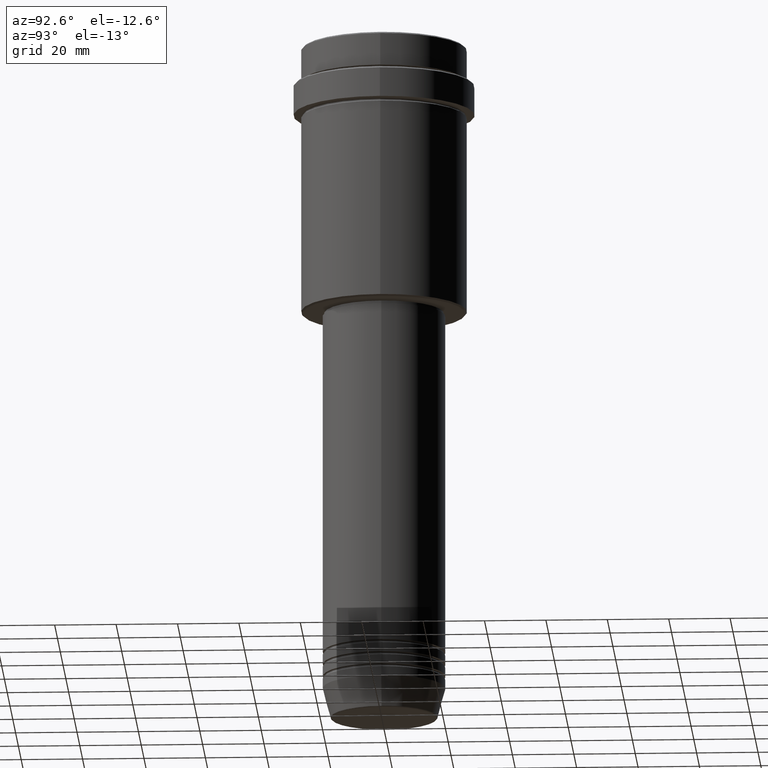
[diagram: clean part render]
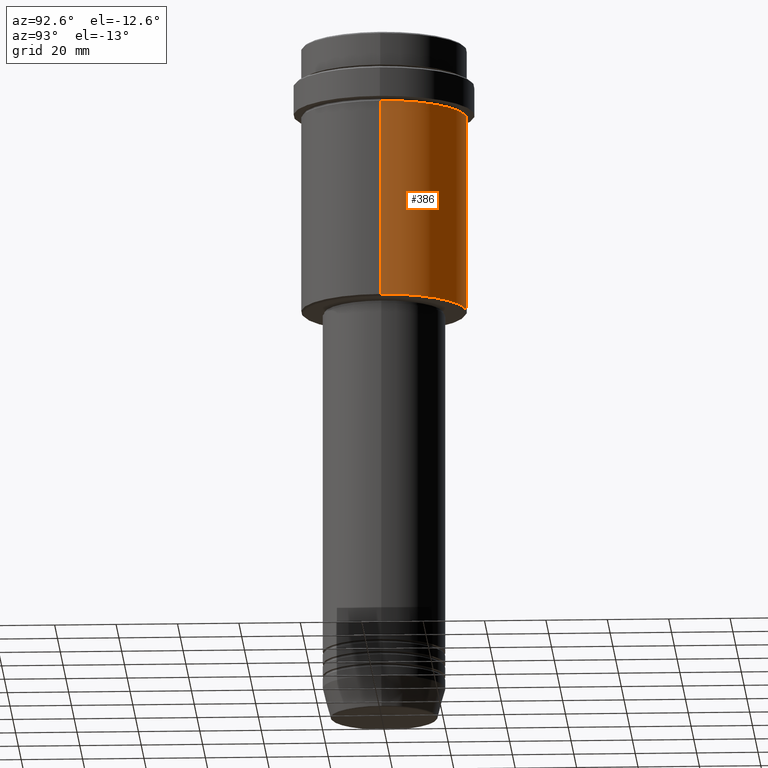
[diagram: same view with one face highlighted and labeled with its STEP entity id]
A machine part, auxiliary view. The second image highlights one B-rep face of the part: STEP entity #386.
In plain terms, the highlighted cylindrical surface (partial cylindrical patch) has radius 27 mm, axis along (-0, -0, 1).
Its self-contained STEP definition (entity closure, byte-faithful):
#135 = VERTEX_POINT ( 'NONE', #1028 ) ;
#146 = CIRCLE ( 'NONE', #257, 27.00000000000000355 ) ;
#183 = DIRECTION ( 'NONE',  ( -1.000000000000000000, 0.000000000000000000, 0.000000000000000000 ) ) ;
#196 = VERTEX_POINT ( 'NONE', #918 ) ;
#226 = CARTESIAN_POINT ( 'NONE',  ( -27.00000000000000355, 3.306546357697854128E-15, -23.00000000000001421 ) ) ;
#257 = AXIS2_PLACEMENT_3D ( 'NONE', #300, #941, #183 ) ;
#299 = EDGE_CURVE ( 'NONE', #196, #1294, #442, .T. ) ;
#300 = CARTESIAN_POINT ( 'NONE',  ( 0.000000000000000000, 0.000000000000000000, -87.49999999999998579 ) ) ;
#315 = CARTESIAN_POINT ( 'NONE',  ( 0.000000000000000000, 0.000000000000000000, -23.00000000000001421 ) ) ;
#386 = ADVANCED_FACE ( 'NONE', ( #1175 ), #1393, .T. ) ;
#398 = DIRECTION ( 'NONE',  ( -0.000000000000000000, -0.000000000000000000, 1.000000000000000000 ) ) ;
#418 = CARTESIAN_POINT ( 'NONE',  ( 0.000000000000000000, 0.000000000000000000, 0.000000000000000000 ) ) ;
#442 = CIRCLE ( 'NONE', #646, 27.00000000000000355 ) ;
#478 = ORIENTED_EDGE ( 'NONE', *, *, #1069, .F. ) ;
#545 = DIRECTION ( 'NONE',  ( -0.000000000000000000, -0.000000000000000000, 1.000000000000000000 ) ) ;
#567 = EDGE_LOOP ( 'NONE', ( #969, #1084, #835, #478 ) ) ;
#624 = CARTESIAN_POINT ( 'NONE',  ( 27.00000000000000355, 0.000000000000000000, 0.000000000000000000 ) ) ;
#641 = DIRECTION ( 'NONE',  ( 1.000000000000000000, 0.000000000000000000, 0.000000000000000000 ) ) ;
#646 = AXIS2_PLACEMENT_3D ( 'NONE', #315, #974, #641 ) ;
#757 = LINE ( 'NONE', #1415, #879 ) ;
#775 = EDGE_CURVE ( 'NONE', #1112, #135, #146, .T. ) ;
#783 = DIRECTION ( 'NONE',  ( 1.000000000000000000, 0.000000000000000000, 0.000000000000000000 ) ) ;
#812 = LINE ( 'NONE', #624, #1153 ) ;
#835 = ORIENTED_EDGE ( 'NONE', *, *, #299, .F. ) ;
#879 = VECTOR ( 'NONE', #545, 1000.000000000000000 ) ;
#918 = CARTESIAN_POINT ( 'NONE',  ( 27.00000000000000355, 0.000000000000000000, -23.00000000000001421 ) ) ;
#941 = DIRECTION ( 'NONE',  ( -0.000000000000000000, -0.000000000000000000, 1.000000000000000000 ) ) ;
#969 = ORIENTED_EDGE ( 'NONE', *, *, #775, .T. ) ;
#974 = DIRECTION ( 'NONE',  ( -0.000000000000000000, -0.000000000000000000, 1.000000000000000000 ) ) ;
#1028 = CARTESIAN_POINT ( 'NONE',  ( -27.00000000000000355, 3.306546357697854128E-15, -87.49999999999998579 ) ) ;
#1069 = EDGE_CURVE ( 'NONE', #1112, #196, #812, .T. ) ;
#1072 = CARTESIAN_POINT ( 'NONE',  ( 27.00000000000000355, 0.000000000000000000, -87.49999999999998579 ) ) ;
#1084 = ORIENTED_EDGE ( 'NONE', *, *, #1119, .T. ) ;
#1112 = VERTEX_POINT ( 'NONE', #1072 ) ;
#1119 = EDGE_CURVE ( 'NONE', #135, #1294, #757, .T. ) ;
#1153 = VECTOR ( 'NONE', #398, 1000.000000000000000 ) ;
#1175 = FACE_OUTER_BOUND ( 'NONE', #567, .T. ) ;
#1197 = AXIS2_PLACEMENT_3D ( 'NONE', #418, #1212, #783 ) ;
#1212 = DIRECTION ( 'NONE',  ( -0.000000000000000000, -0.000000000000000000, 1.000000000000000000 ) ) ;
#1294 = VERTEX_POINT ( 'NONE', #226 ) ;
#1393 = CYLINDRICAL_SURFACE ( 'NONE', #1197, 27.00000000000000355 ) ;
#1415 = CARTESIAN_POINT ( 'NONE',  ( -27.00000000000000355, 3.306546357697854128E-15, 0.000000000000000000 ) ) ;